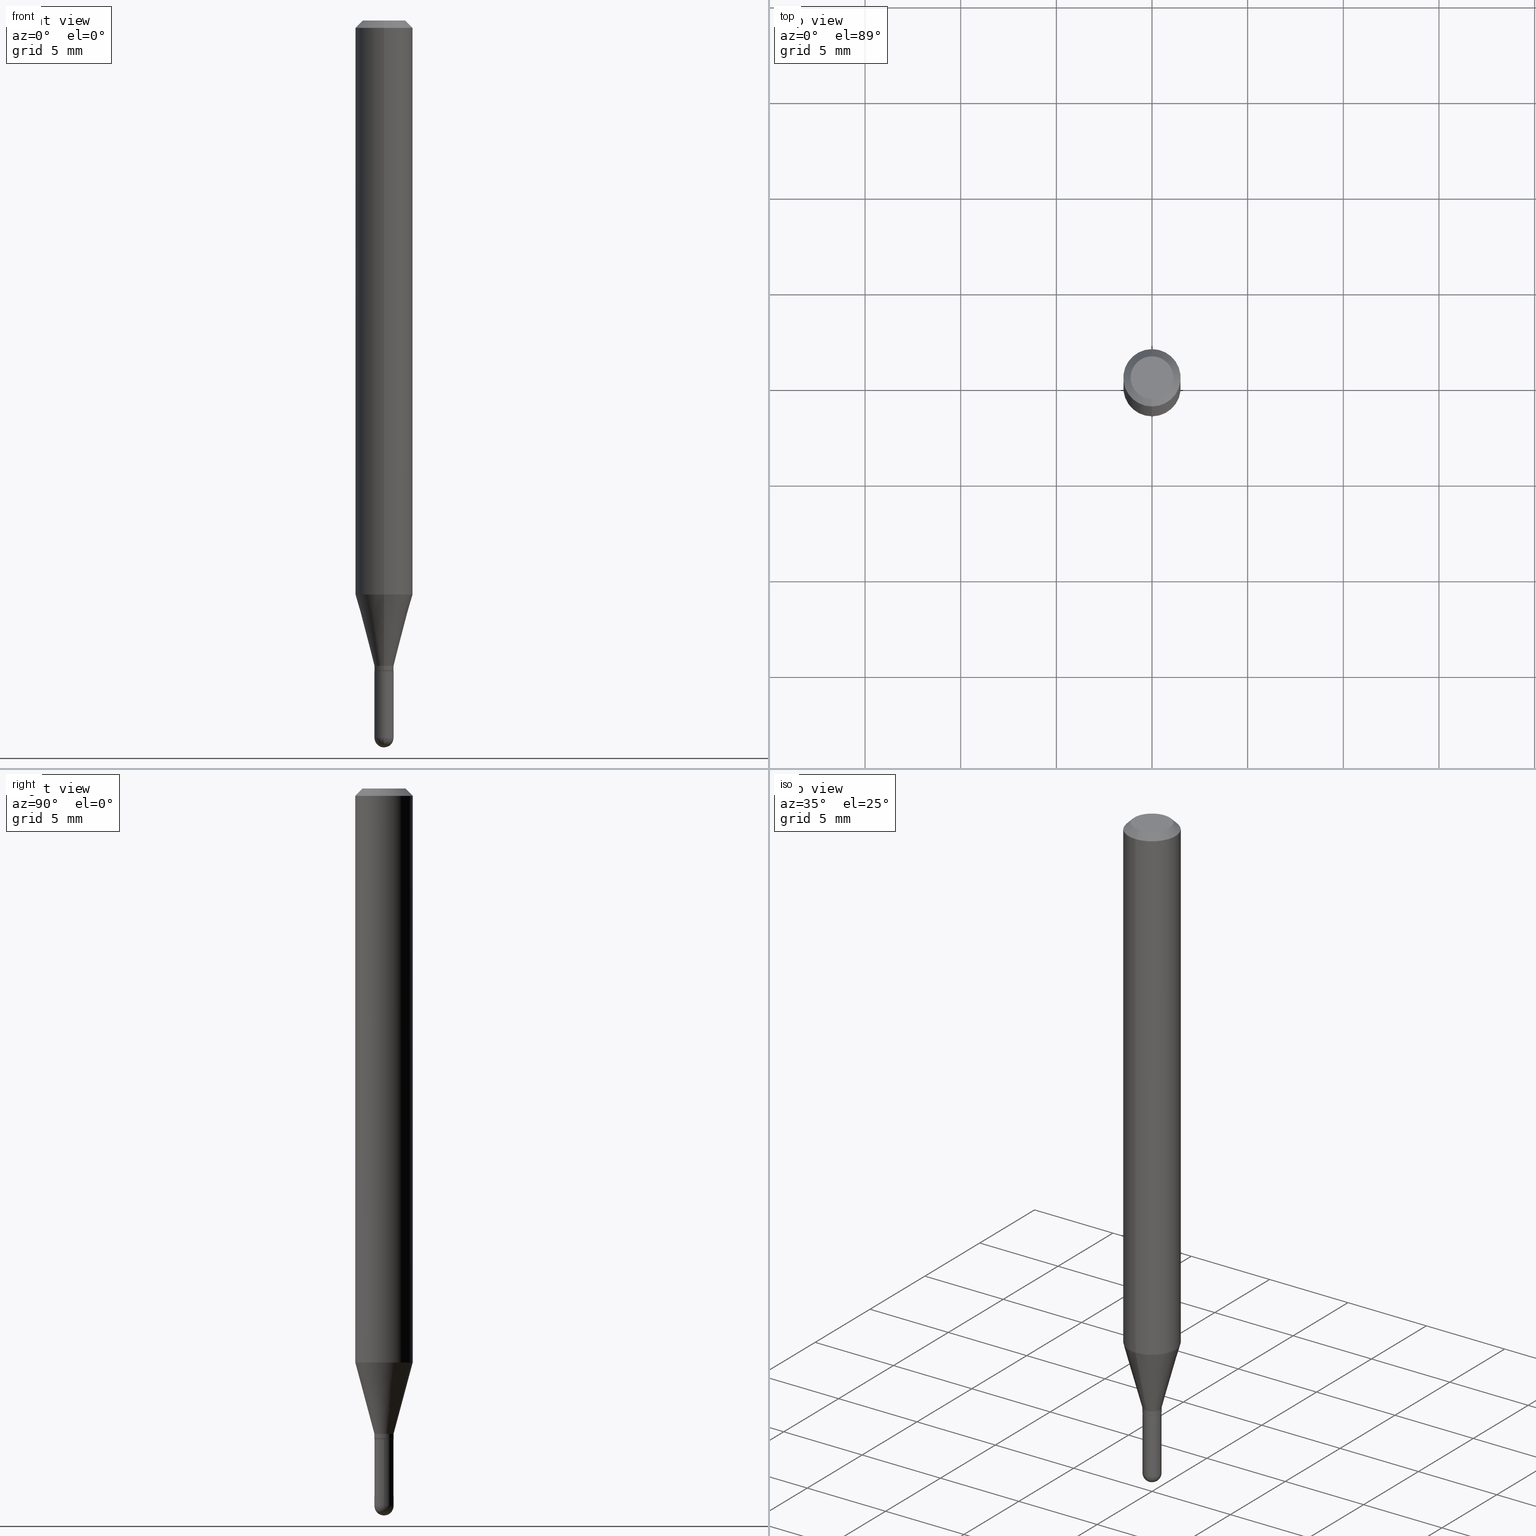
[diagram: canonical four-view strip — front | top / right | iso, engineering-drawing reading convention]
A machine part, canonical four-view strip (front | top / right | iso — engineering-drawing reading convention). The complete STEP part file that produces these views, byte-faithful:
ISO-10303-21;
HEADER;
FILE_DESCRIPTION (( 'STEP AP203' ),
    '1' );
FILE_NAME ('48735.STEP',
    '2024-03-08T13:19:25',
    ( '' ),
    ( '' ),
    'SwSTEP 2.0',
    'SolidWorks 2023',
    '' );
FILE_SCHEMA (( 'CONFIG_CONTROL_DESIGN' ));
ENDSEC;

DATA;
#1 = EDGE_CURVE ( 'NONE', #126, #434, #158, .T. ) ;
#2 = DIRECTION ( 'NONE',  ( -6.982962677686265922E-15, -1.000000000000000000, 3.489512315861569973E-15 ) ) ;
#3 = ADVANCED_FACE ( 'NONE', ( #500 ), #476, .T. ) ;
#4 = VERTEX_POINT ( 'NONE', #262 ) ;
#5 = AXIS2_PLACEMENT_3D ( 'NONE', #86, #83, #280 ) ;
#6 = DIRECTION ( 'NONE',  ( -2.445468806185136597E-29, 3.491481338843145583E-15, 1.000000000000000000 ) ) ;
#7 = EDGE_LOOP ( 'NONE', ( #347, #351, #41, #204, #54 ) ) ;
#8 = LINE ( 'NONE', #329, #235 ) ;
#9 = ORIENTED_EDGE ( 'NONE', *, *, #238, .T. ) ;
#10 = DIRECTION ( 'NONE',  ( 6.982962677686265133E-15, 1.000000000000000000, 0.000000000000000000 ) ) ;
#11 = ORIENTED_EDGE ( 'NONE', *, *, #285, .T. ) ;
#12 = CIRCLE ( 'NONE', #459, 0.05905000000000001914 ) ;
#13 = PRODUCT ( '48735', '48735', '', ( #387 ) ) ;
#14 = AXIS2_PLACEMENT_3D ( 'NONE', #429, #333, #108 ) ;
#15 = LOCAL_TIME ( 8, 19, 25.00000000000000000, #291 ) ;
#16 = FACE_OUTER_BOUND ( 'NONE', #7, .T. ) ;
#17 = VERTEX_POINT ( 'NONE', #340 ) ;
#18 = CARTESIAN_POINT ( 'NONE',  ( 3.274121645404580744E-29, -4.669316429854365790E-15, -1.338099999999999845 ) ) ;
#19 = VERTEX_POINT ( 'NONE', #24 ) ;
#20 = PERSON_AND_ORGANIZATION ( #248, #395 ) ;
#21 = CC_DESIGN_APPROVAL ( #43, ( #355 ) ) ;
#22 = FACE_OUTER_BOUND ( 'NONE', #129, .T. ) ;
#23 = EDGE_CURVE ( 'NONE', #84, #432, #143, .T. ) ;
#24 = CARTESIAN_POINT ( 'NONE',  ( 0.01969999999999982529, -5.051824349172144243E-15, -1.476399999999999935 ) ) ;
#25 = EDGE_CURVE ( 'NONE', #316, #409, #75, .T. ) ;
#26 = EDGE_CURVE ( 'NONE', #330, #407, #508, .T. ) ;
#27 = ADVANCED_FACE ( 'NONE', ( #503 ), #223, .T. ) ;
#28 = DIRECTION ( 'NONE',  ( -6.982962677686265922E-15, -1.000000000000000000, 3.489512315861569973E-15 ) ) ;
#29 = AXIS2_PLACEMENT_3D ( 'NONE', #180, #304, #185 ) ;
#30 = CONICAL_SURFACE ( 'NONE', #461, 0.01969999999999975590, 0.2617993877991498519 ) ;
#31 = CYLINDRICAL_SURFACE ( 'NONE', #359, 0.05905000000000001914 ) ;
#32 = APPROVAL_DATE_TIME ( #413, #50 ) ;
#33 = DIRECTION ( 'NONE',  ( -6.982962677686265922E-15, -1.000000000000000000, 3.505890868245044514E-15 ) ) ;
#34 = CARTESIAN_POINT ( 'NONE',  ( -0.01969999999999982529, -4.774283065476988875E-15, -1.476399999999999935 ) ) ;
#35 = DIRECTION ( 'NONE',  ( -2.446843767584321492E-29, 3.489512315861569973E-15, 1.000000000000000000 ) ) ;
#36 = CALENDAR_DATE ( 2024, 8, 3 ) ;
#37 = FACE_OUTER_BOUND ( 'NONE', #375, .T. ) ;
#38 = CC_DESIGN_APPROVAL ( #284, ( #142 ) ) ;
#39 = DATE_TIME_ROLE ( 'classification_date' ) ;
#40 = CARTESIAN_POINT ( 'NONE',  ( -4.123439461173741313E-16, -0.05905000000000001914, 2.060557022516257628E-16 ) ) ;
#41 = ORIENTED_EDGE ( 'NONE', *, *, #1, .F. ) ;
#42 = LINE ( 'NONE', #40, #300 ) ;
#43 = APPROVAL ( #501, 'UNSPECIFIED' ) ;
#44 = PLANE ( 'NONE',  #178 ) ;
#45 = ORIENTED_EDGE ( 'NONE', *, *, #125, .F. ) ;
#46 = DATE_AND_TIME ( #473, #371 ) ;
#47 = VECTOR ( 'NONE', #511, 39.37007874015748143 ) ;
#48 = CARTESIAN_POINT ( 'NONE',  ( 1.382005621053707097E-16, 0.01919999999999515150, -1.338599999999999790 ) ) ;
#49 = ORIENTED_EDGE ( 'NONE', *, *, #494, .T. ) ;
#50 = APPROVAL ( #94, 'UNSPECIFIED' ) ;
#51 = CARTESIAN_POINT ( 'NONE',  ( 3.610490145451735091E-29, -5.154823048668019264E-15, -1.476399999999999935 ) ) ;
#52 = ORIENTED_EDGE ( 'NONE', *, *, #138, .F. ) ;
#53 = CYLINDRICAL_SURFACE ( 'NONE', #360, 0.01969999999999974896 ) ;
#54 = ORIENTED_EDGE ( 'NONE', *, *, #344, .T. ) ;
#55 = CONICAL_SURFACE ( 'NONE', #452, 0.01919999999999982485, 0.7853981633974718157 ) ;
#56 = CIRCLE ( 'NONE', #149, 0.05905000000000001914 ) ;
#57 = DIRECTION ( 'NONE',  ( -1.807323732225327378E-15, -0.2588190451025177974, 0.9659258262890690894 ) ) ;
#58 = ORIENTED_EDGE ( 'NONE', *, *, #138, .T. ) ;
#59 = DIRECTION ( 'NONE',  ( -2.446843767584321492E-29, 3.489512315861569973E-15, 1.000000000000000000 ) ) ;
#60 = SECURITY_CLASSIFICATION_LEVEL ( 'unclassified' ) ;
#61 = DIRECTION ( 'NONE',  ( -1.000000000000000000, 6.982962677686265922E-15, -4.876176775795935793E-29 ) ) ;
#62 = UNCERTAINTY_MEASURE_WITH_UNIT (LENGTH_MEASURE( 1.000000000000000082E-05 ), #464, 'distance_accuracy_value', 'NONE');
#63 = APPROVAL_PERSON_ORGANIZATION ( #130, #50, #265 ) ;
#64 = DIRECTION ( 'NONE',  ( 2.438088387897960049E-29, -3.491481338843145188E-15, -1.000000000000000000 ) ) ;
#65 = CARTESIAN_POINT ( 'NONE',  ( -1.340728834115423109E-16, -0.01920000000000449472, -1.338599999999999790 ) ) ;
#66 = CARTESIAN_POINT ( 'NONE',  ( 4.195754854663678920E-16, 0.05904999999999587662, -1.181243800722164172 ) ) ;
#67 = PERSON_AND_ORGANIZATION_ROLE ( 'creator' ) ;
#68 = CIRCLE ( 'NONE', #76, 0.01969999999999974549 ) ;
#69 = CARTESIAN_POINT ( 'NONE',  ( 3.670265651376586057E-31, -5.234268473792502525E-17, -0.01500000000000042445 ) ) ;
#70 = DESIGN_CONTEXT ( 'detailed design', #268, 'design' ) ;
#71 = FACE_OUTER_BOUND ( 'NONE', #156, .T. ) ;
#72 = PLANE ( 'NONE',  #141 ) ;
#73 = ORIENTED_EDGE ( 'NONE', *, *, #148, .F. ) ;
#74 = CARTESIAN_POINT ( 'NONE',  ( -4.051124067684086217E-16, -0.05905000000000006771, -0.01500000000000021802 ) ) ;
#75 = CIRCLE ( 'NONE', #327, 0.01969999999999975590 ) ;
#76 = AXIS2_PLACEMENT_3D ( 'NONE', #348, #228, #392 ) ;
#77 = ORIENTED_EDGE ( 'NONE', *, *, #457, .F. ) ;
#78 = VECTOR ( 'NONE', #468, 39.37007874015748143 ) ;
#79 = LINE ( 'NONE', #346, #78 ) ;
#80 = EDGE_LOOP ( 'NONE', ( #187, #120, #255, #362 ) ) ;
#81 = DIRECTION ( 'NONE',  ( -6.982962677686265922E-15, -1.000000000000000000, 0.000000000000000000 ) ) ;
#82 = ORIENTED_EDGE ( 'NONE', *, *, #184, .T. ) ;
#83 = DIRECTION ( 'NONE',  ( -2.446843767584321492E-29, 3.489512315861569973E-15, 1.000000000000000000 ) ) ;
#84 = VERTEX_POINT ( 'NONE', #66 ) ;
#85 = VECTOR ( 'NONE', #307, 39.37007874015748143 ) ;
#86 = CARTESIAN_POINT ( 'NONE',  ( 1.037957314455214522E-44, -1.480259949619056811E-30, -4.242025290727700899E-16 ) ) ;
#87 = ORIENTED_EDGE ( 'NONE', *, *, #184, .F. ) ;
#88 = FACE_OUTER_BOUND ( 'NONE', #80, .T. ) ;
#89 = ORIENTED_EDGE ( 'NONE', *, *, #465, .F. ) ;
#90 = DIRECTION ( 'NONE',  ( -2.446843767584321492E-29, 3.489512315861569973E-15, 1.000000000000000000 ) ) ;
#91 = EDGE_LOOP ( 'NONE', ( #52, #319, #447, #247 ) ) ;
#92 = AXIS2_PLACEMENT_3D ( 'NONE', #102, #64, #61 ) ;
#93 = AXIS2_PLACEMENT_3D ( 'NONE', #161, #487, #208 ) ;
#94 = APPROVAL_STATUS ( 'not_yet_approved' ) ;
#95 = ORIENTED_EDGE ( 'NONE', *, *, #465, .T. ) ;
#96 = APPROVAL_ROLE ( '' ) ;
#97 = DIRECTION ( 'NONE',  ( 1.000000000000000000, -6.982962677686242256E-15, 0.000000000000000000 ) ) ;
#98 = CARTESIAN_POINT ( 'NONE',  ( 3.670265651376586057E-31, -5.234268473792502525E-17, -0.01500000000000042445 ) ) ;
#99 = PRODUCT_RELATED_PRODUCT_CATEGORY ( 'detail', '', ( #13 ) ) ;
#100 = AXIS2_PLACEMENT_3D ( 'NONE', #113, #350, #157 ) ;
#101 = LINE ( 'NONE', #219, #334 ) ;
#102 = CARTESIAN_POINT ( 'NONE',  ( 1.375643647504509660E-16, 0.01969999999999515194, -1.338599999999999790 ) ) ;
#103 = CALENDAR_DATE ( 2024, 8, 3 ) ;
#104 = CARTESIAN_POINT ( 'NONE',  ( 3.273504543959423352E-29, -4.673696920175433159E-15, -1.338599999999999790 ) ) ;
#105 = DATE_AND_TIME ( #146, #133 ) ;
#106 = AXIS2_PLACEMENT_3D ( 'NONE', #244, #165, #406 ) ;
#107 = LINE ( 'NONE', #312, #301 ) ;
#108 = DIRECTION ( 'NONE',  ( 1.000000000000000000, 0.000000000000000000, 0.000000000000000000 ) ) ;
#109 = ADVANCED_FACE ( 'NONE', ( #22 ), #419, .T. ) ;
#110 = DIRECTION ( 'NONE',  ( 6.982962677686265922E-15, 1.000000000000000000, -3.505890868245044514E-15 ) ) ;
#111 = ORIENTED_EDGE ( 'NONE', *, *, #238, .F. ) ;
#112 = ADVANCED_FACE ( 'NONE', ( #462 ), #458, .F. ) ;
#113 = CARTESIAN_POINT ( 'NONE',  ( 3.670265651376586057E-31, -5.234268473792502525E-17, -0.01500000000000042445 ) ) ;
#114 = ADVANCED_FACE ( 'NONE', ( #338 ), #55, .T. ) ;
#115 = ADVANCED_FACE ( 'NONE', ( #299 ), #31, .T. ) ;
#116 = AXIS2_PLACEMENT_3D ( 'NONE', #104, #414, #466 ) ;
#117 = DIRECTION ( 'NONE',  ( -2.446843767584321492E-29, 3.489512315861569973E-15, 1.000000000000000000 ) ) ;
#118 = ORIENTED_EDGE ( 'NONE', *, *, #448, .T. ) ;
#119 = DIRECTION ( 'NONE',  ( -6.982962677686265133E-15, -1.000000000000000000, 0.000000000000000000 ) ) ;
#120 = ORIENTED_EDGE ( 'NONE', *, *, #125, .T. ) ;
#121 = CARTESIAN_POINT ( 'NONE',  ( -0.01969999999999982529, -4.774283065476988875E-15, -1.338599999999999790 ) ) ;
#122 = VERTEX_POINT ( 'NONE', #145 ) ;
#123 = CIRCLE ( 'NONE', #226, 0.01970000000000003693 ) ;
#124 = CARTESIAN_POINT ( 'NONE',  ( 3.610490145451735091E-29, -5.154823048668019264E-15, -1.476399999999999935 ) ) ;
#125 = EDGE_CURVE ( 'NONE', #409, #84, #101, .T. ) ;
#126 = VERTEX_POINT ( 'NONE', #217 ) ;
#127 = DIRECTION ( 'NONE',  ( -2.445468806185136597E-29, 3.491481338843145583E-15, 1.000000000000000000 ) ) ;
#128 = EDGE_CURVE ( 'NONE', #509, #154, #402, .T. ) ;
#129 = EDGE_LOOP ( 'NONE', ( #490, #82, #479, #412 ) ) ;
#130 = PERSON_AND_ORGANIZATION ( #248, #395 ) ;
#131 = VERTEX_POINT ( 'NONE', #495 ) ;
#132 = CIRCLE ( 'NONE', #5, 0.04405000000000000582 ) ;
#133 = LOCAL_TIME ( 8, 19, 25.00000000000000000, #504 ) ;
#134 = PERSON_AND_ORGANIZATION ( #248, #395 ) ;
#135 = CARTESIAN_POINT ( 'NONE',  ( 1.364242052659707289E-16, 0.01919999999999515150, -1.338599999999999790 ) ) ;
#136 = DIRECTION ( 'NONE',  ( -6.982962677686265922E-15, -1.000000000000000000, 3.489512315861569973E-15 ) ) ;
#137 = CC_DESIGN_PERSON_AND_ORGANIZATION_ASSIGNMENT ( #376, #67, ( #355 ) ) ;
#138 = EDGE_CURVE ( 'NONE', #407, #17, #296, .T. ) ;
#139 = CARTESIAN_POINT ( 'NONE',  ( 3.275345067288372105E-29, -4.671061186012295897E-15, -1.338599999999999790 ) ) ;
#140 = CLOSED_SHELL ( 'NONE', ( #415, #114, #315, #115, #323, #207, #109, #3, #322, #498, #378, #162 ) ) ;
#141 = AXIS2_PLACEMENT_3D ( 'NONE', #396, #512, #155 ) ;
#142 = SECURITY_CLASSIFICATION ( '', '', #60 ) ;
#143 = LINE ( 'NONE', #386, #170 ) ;
#144 = DATE_AND_TIME ( #36, #183 ) ;
#145 = CARTESIAN_POINT ( 'NONE',  ( 1.375643647504544420E-16, 0.01969999999999468704, -1.476399999999999935 ) ) ;
#146 = CALENDAR_DATE ( 2024, 8, 3 ) ;
#147 = DIRECTION ( 'NONE',  ( -1.000000000000000000, 7.105427357601001070E-15, -4.926315508542082329E-29 ) ) ;
#148 = EDGE_CURVE ( 'NONE', #330, #372, #422, .T. ) ;
#149 = AXIS2_PLACEMENT_3D ( 'NONE', #439, #326, #489 ) ;
#150 = CARTESIAN_POINT ( 'NONE',  ( 0.000000000000000000, 0.000000000000000000, 0.000000000000000000 ) ) ;
#151 = EDGE_LOOP ( 'NONE', ( #209, #49, #237, #89 ) ) ;
#152 = EDGE_CURVE ( 'NONE', #434, #126, #484, .T. ) ;
#153 = CARTESIAN_POINT ( 'NONE',  ( 1.037957314455214522E-44, -1.480259949619056811E-30, -4.242025290727700899E-16 ) ) ;
#154 = VERTEX_POINT ( 'NONE', #381 ) ;
#155 = DIRECTION ( 'NONE',  ( 6.982962677686265922E-15, 1.000000000000000000, -3.489512315861569973E-15 ) ) ;
#156 = EDGE_LOOP ( 'NONE', ( #506, #328, #321, #77 ) ) ;
#157 = DIRECTION ( 'NONE',  ( -6.982962677686265922E-15, -1.000000000000000000, 3.505890868245044514E-15 ) ) ;
#158 = CIRCLE ( 'NONE', #116, 0.01969999999999982529 ) ;
#159 = AXIS2_PLACEMENT_3D ( 'NONE', #286, #324, #241 ) ;
#160 = APPROVAL_DATE_TIME ( #46, #284 ) ;
#161 = CARTESIAN_POINT ( 'NONE',  ( 3.249653207728737815E-29, -4.634421306695751021E-15, -1.328100000000000058 ) ) ;
#162 = ADVANCED_FACE ( 'NONE', ( #194 ), #239, .T. ) ;
#163 = EDGE_LOOP ( 'NONE', ( #270, #118 ) ) ;
#164 = COORDINATED_UNIVERSAL_TIME_OFFSET ( 5, 0, .BEHIND. ) ;
#165 = DIRECTION ( 'NONE',  ( -2.445468806185136597E-29, 3.491481338843145583E-15, 1.000000000000000000 ) ) ;
#166 = EDGE_LOOP ( 'NONE', ( #45, #95, #215, #87 ) ) ;
#167 = EDGE_CURVE ( 'NONE', #432, #4, #220, .T. ) ;
#168 = DIRECTION ( 'NONE',  ( -6.982962677686265922E-15, -1.000000000000000000, 3.489512315861569973E-15 ) ) ;
#169 = ORIENTED_EDGE ( 'NONE', *, *, #298, .T. ) ;
#170 = VECTOR ( 'NONE', #460, 39.37007874015748143 ) ;
#171 = LINE ( 'NONE', #201, #420 ) ;
#172 = VERTEX_POINT ( 'NONE', #232 ) ;
#173 = CARTESIAN_POINT ( 'NONE',  ( 3.249653207728737815E-29, -4.634421306695751021E-15, -1.328100000000000058 ) ) ;
#174 = ORIENTED_EDGE ( 'NONE', *, *, #258, .T. ) ;
#175 = PERSON_AND_ORGANIZATION ( #248, #395 ) ;
#176 = DIRECTION ( 'NONE',  ( -6.982962677686265133E-15, -1.000000000000000000, 0.000000000000000000 ) ) ;
#177 = AXIS2_PLACEMENT_3D ( 'NONE', #339, #497, #28 ) ;
#178 = AXIS2_PLACEMENT_3D ( 'NONE', #470, #267, #426 ) ;
#179 = CARTESIAN_POINT ( 'NONE',  ( 3.275345067288372105E-29, -4.671061186012295897E-15, -1.338599999999999790 ) ) ;
#180 = CARTESIAN_POINT ( 'NONE',  ( 3.484233394517290141E-29, -5.335629902094134914E-15, -1.476399999999999935 ) ) ;
#181 = CARTESIAN_POINT ( 'NONE',  ( 3.249653207728737815E-29, -4.634421306695751021E-15, -1.328100000000000058 ) ) ;
#182 = EDGE_CURVE ( 'NONE', #407, #330, #394, .T. ) ;
#183 = LOCAL_TIME ( 8, 19, 25.00000000000000000, #379 ) ;
#184 = EDGE_CURVE ( 'NONE', #84, #283, #12, .T. ) ;
#185 = DIRECTION ( 'NONE',  ( 6.982962677686265922E-15, 1.000000000000000000, 0.000000000000000000 ) ) ;
#186 = DIRECTION ( 'NONE',  ( -6.982962677686265133E-15, -1.000000000000000000, 3.489512315861569973E-15 ) ) ;
#187 = ORIENTED_EDGE ( 'NONE', *, *, #25, .T. ) ;
#188 = EDGE_CURVE ( 'NONE', #283, #4, #42, .T. ) ;
#189 =( NAMED_UNIT ( * ) SI_UNIT ( $, .STERADIAN. ) SOLID_ANGLE_UNIT ( ) );
#190 = SPHERICAL_SURFACE ( 'NONE', #282, 0.01970000000000003693 ) ;
#191 = LENGTH_MEASURE_WITH_UNIT ( LENGTH_MEASURE( 0.02539999999999999897 ), #389 );
#192 = AXIS2_PLACEMENT_3D ( 'NONE', #388, #199, #264 ) ;
#193 = AXIS2_PLACEMENT_3D ( 'NONE', #173, #90, #249 ) ;
#194 = FACE_OUTER_BOUND ( 'NONE', #151, .T. ) ;
#195 = ORIENTED_EDGE ( 'NONE', *, *, #152, .T. ) ;
#196 = CARTESIAN_POINT ( 'NONE',  ( 3.484233394517290141E-29, -5.335629902094134914E-15, -1.476399999999999935 ) ) ;
#197 = ORIENTED_EDGE ( 'NONE', *, *, #152, .F. ) ;
#198 = PERSON_AND_ORGANIZATION ( #248, #395 ) ;
#199 = DIRECTION ( 'NONE',  ( -2.446843767584321492E-29, 3.489512315861569973E-15, 1.000000000000000000 ) ) ;
#200 = ORIENTED_EDGE ( 'NONE', *, *, #289, .T. ) ;
#201 = CARTESIAN_POINT ( 'NONE',  ( -0.01969999999999982529, 1.399769189447384952E-16, -9.690302127802078423E-31 ) ) ;
#202 = CLOSED_SHELL ( 'NONE', ( #416, #27, #112, #230, #352 ) ) ;
#203 = AXIS2_PLACEMENT_3D ( 'NONE', #51, #374, #437 ) ;
#204 = ORIENTED_EDGE ( 'NONE', *, *, #430, .F. ) ;
#205 = DIRECTION ( 'NONE',  ( -2.445468806185136877E-29, 3.491481338843145188E-15, 1.000000000000000000 ) ) ;
#206 = ORIENTED_EDGE ( 'NONE', *, *, #448, .F. ) ;
#207 = ADVANCED_FACE ( 'NONE', ( #505 ), #30, .T. ) ;
#208 = DIRECTION ( 'NONE',  ( -6.982962677686264344E-15, -1.000000000000000000, 0.000000000000000000 ) ) ;
#209 = ORIENTED_EDGE ( 'NONE', *, *, #298, .F. ) ;
#210 = EDGE_CURVE ( 'NONE', #243, #4, #266, .T. ) ;
#211 = FACE_OUTER_BOUND ( 'NONE', #393, .T. ) ;
#212 = ORIENTED_EDGE ( 'NONE', *, *, #337, .F. ) ;
#213 = CIRCLE ( 'NONE', #403, 0.01969999999999982529 ) ;
#214 = CARTESIAN_POINT ( 'NONE',  ( 4.195754854663682864E-16, 0.05904999999999996363, -0.01500000000000063262 ) ) ;
#215 = ORIENTED_EDGE ( 'NONE', *, *, #486, .T. ) ;
#216 = DATE_AND_TIME ( #103, #242 ) ;
#217 = CARTESIAN_POINT ( 'NONE',  ( 0.01969999999999982529, -4.811261284925851584E-15, -1.338599999999999790 ) ) ;
#218 = PERSON_AND_ORGANIZATION ( #248, #395 ) ;
#219 = CARTESIAN_POINT ( 'NONE',  ( 1.399769189447704441E-16, 0.01969999999999511725, -1.328100000000000058 ) ) ;
#220 = CIRCLE ( 'NONE', #100, 0.05905000000000001914 ) ;
#221 = APPROVAL_PERSON_ORGANIZATION ( #175, #43, #96 ) ;
#222 = DIRECTION ( 'NONE',  ( -2.446843767584321492E-29, 3.489512315861569973E-15, 1.000000000000000000 ) ) ;
#223 = SPHERICAL_SURFACE ( 'NONE', #29, 0.01970000000000003693 ) ;
#224 = DIRECTION ( 'NONE',  ( -2.446843767584321492E-29, 3.489512315861569973E-15, 1.000000000000000000 ) ) ;
#225 = CALENDAR_DATE ( 2024, 8, 3 ) ;
#226 = AXIS2_PLACEMENT_3D ( 'NONE', #446, #369, #10 ) ;
#227 = APPROVAL_PERSON_ORGANIZATION ( #198, #284, #234 ) ;
#228 = DIRECTION ( 'NONE',  ( -2.446843767584321492E-29, 3.489512315861569973E-15, 1.000000000000000000 ) ) ;
#229 = CARTESIAN_POINT ( 'NONE',  ( 3.484233394517290141E-29, -5.335629902094134914E-15, -1.476399999999999935 ) ) ;
#230 = ADVANCED_FACE ( 'NONE', ( #71 ), #190, .T. ) ;
#231 = PERSON_AND_ORGANIZATION_ROLE ( 'design_owner' ) ;
#232 = CARTESIAN_POINT ( 'NONE',  ( 3.533251468793978483E-29, -5.403205807372184080E-15, -1.496099999999999985 ) ) ;
#233 = EDGE_LOOP ( 'NONE', ( #481, #475, #488, #445 ) ) ;
#234 = APPROVAL_ROLE ( '' ) ;
#235 = VECTOR ( 'NONE', #401, 39.37007874015748143 ) ;
#236 = LINE ( 'NONE', #507, #85 ) ;
#237 = ORIENTED_EDGE ( 'NONE', *, *, #308, .T. ) ;
#238 = EDGE_CURVE ( 'NONE', #372, #17, #68, .T. ) ;
#239 = CYLINDRICAL_SURFACE ( 'NONE', #418, 0.01969999999999974896 ) ;
#240 = FACE_OUTER_BOUND ( 'NONE', #405, .T. ) ;
#241 = DIRECTION ( 'NONE',  ( 1.000000000000000000, -6.982962677686266711E-15, 4.876176775795936353E-29 ) ) ;
#242 = LOCAL_TIME ( 8, 19, 25.00000000000000000, #391 ) ;
#243 = VERTEX_POINT ( 'NONE', #478 ) ;
#244 = CARTESIAN_POINT ( 'NONE',  ( 0.000000000000000000, 0.000000000000000000, 0.000000000000000000 ) ) ;
#245 = ORIENTED_EDGE ( 'NONE', *, *, #167, .T. ) ;
#246 = CARTESIAN_POINT ( 'NONE',  ( -1.375643647503853673E-16, -0.01970000000000448476, -1.338099999999999845 ) ) ;
#247 = ORIENTED_EDGE ( 'NONE', *, *, #494, .F. ) ;
#248 = PERSON ( 'UNSPECIFIED', 'UNSPECIFIED', 'UNSPECIFIED', ('UNSPECIFIED'), ('UNSPECIFIED'), ('UNSPECIFIED') ) ;
#249 = DIRECTION ( 'NONE',  ( -6.982962677686264344E-15, -1.000000000000000000, 0.000000000000000000 ) ) ;
#250 = AXIS2_PLACEMENT_3D ( 'NONE', #98, #496, #377 ) ;
#251 = EDGE_LOOP ( 'NONE', ( #272, #174, #440, #279 ) ) ;
#252 = PRODUCT_DEFINITION_FORMATION_WITH_SPECIFIED_SOURCE ( 'ANY', '', #13, .NOT_KNOWN. ) ;
#253 = CC_DESIGN_SECURITY_CLASSIFICATION ( #142, ( #252 ) ) ;
#254 = PERSON_AND_ORGANIZATION ( #248, #395 ) ;
#255 = ORIENTED_EDGE ( 'NONE', *, *, #444, .F. ) ;
#256 = CARTESIAN_POINT ( 'NONE',  ( 0.000000000000000000, 0.000000000000000000, 0.000000000000000000 ) ) ;
#257 = DIRECTION ( 'NONE',  ( -6.982962677686264344E-15, -1.000000000000000000, 0.000000000000000000 ) ) ;
#258 = EDGE_CURVE ( 'NONE', #172, #154, #302, .T. ) ;
#259 = AXIS2_PLACEMENT_3D ( 'NONE', #408, #480, #119 ) ;
#260 = DIRECTION ( 'NONE',  ( 1.000000000000000000, -6.982962677686291165E-15, 0.000000000000000000 ) ) ;
#261 = CC_DESIGN_DATE_AND_TIME_ASSIGNMENT ( #105, #39, ( #142 ) ) ;
#262 = CARTESIAN_POINT ( 'NONE',  ( -4.123439461173737369E-16, -0.05905000000000006771, -0.01500000000000021802 ) ) ;
#263 = DATE_TIME_ROLE ( 'creation_date' ) ;
#264 = DIRECTION ( 'NONE',  ( -6.982962677686265133E-15, -1.000000000000000000, 0.000000000000000000 ) ) ;
#265 = APPROVAL_ROLE ( '' ) ;
#266 = LINE ( 'NONE', #74, #47 ) ;
#267 = DIRECTION ( 'NONE',  ( -2.446843767584321212E-29, 3.489512315861569973E-15, 1.000000000000000000 ) ) ;
#268 = APPLICATION_CONTEXT ( 'configuration controlled 3d designs of mechanical parts and assemblies' ) ;
#269 = CARTESIAN_POINT ( 'NONE',  ( -1.375643647503852441E-16, -0.01970000000000439108, -1.328100000000000058 ) ) ;
#270 = ORIENTED_EDGE ( 'NONE', *, *, #297, .T. ) ;
#271 = CARTESIAN_POINT ( 'NONE',  ( -4.123439461173452886E-16, -0.05905000000000415472, -1.181243800722163728 ) ) ;
#272 = ORIENTED_EDGE ( 'NONE', *, *, #399, .F. ) ;
#273 = CIRCLE ( 'NONE', #411, 0.04405000000000000582 ) ;
#274 = DIRECTION ( 'NONE',  ( -2.446843767584321492E-29, 3.489512315861569973E-15, 1.000000000000000000 ) ) ;
#275 = EDGE_LOOP ( 'NONE', ( #212, #287, #354, #367, #197 ) ) ;
#276 = CARTESIAN_POINT ( 'NONE',  ( 3.610490145451735091E-29, -5.154823048668019264E-15, -1.476399999999999935 ) ) ;
#277 = ORIENTED_EDGE ( 'NONE', *, *, #210, .T. ) ;
#278 = CYLINDRICAL_SURFACE ( 'NONE', #159, 0.01969999999999982529 ) ;
#279 = ORIENTED_EDGE ( 'NONE', *, *, #463, .F. ) ;
#280 = DIRECTION ( 'NONE',  ( -6.982962677686265133E-15, -1.000000000000000000, 3.489512315861569973E-15 ) ) ;
#281 = AXIS2_PLACEMENT_3D ( 'NONE', #335, #306, #260 ) ;
#282 = AXIS2_PLACEMENT_3D ( 'NONE', #196, #436, #313 ) ;
#283 = VERTEX_POINT ( 'NONE', #271 ) ;
#284 = APPROVAL ( #438, 'UNSPECIFIED' ) ;
#285 = EDGE_CURVE ( 'NONE', #4, #432, #510, .T. ) ;
#286 = CARTESIAN_POINT ( 'NONE',  ( 0.000000000000000000, 0.000000000000000000, 0.000000000000000000 ) ) ;
#287 = ORIENTED_EDGE ( 'NONE', *, *, #128, .T. ) ;
#288 = DIRECTION ( 'NONE',  ( 1.000000000000000000, -6.982962677686291165E-15, 0.000000000000000000 ) ) ;
#289 = EDGE_CURVE ( 'NONE', #131, #432, #236, .T. ) ;
#290 = EDGE_LOOP ( 'NONE', ( #428, #195 ) ) ;
#291 = COORDINATED_UNIVERSAL_TIME_OFFSET ( 5, 0, .BEHIND. ) ;
#292 = MANIFOLD_SOLID_BREP ( 'Body-Move/Copy2[1]', #202 ) ;
#293 = ORIENTED_EDGE ( 'NONE', *, *, #297, .F. ) ;
#294 = AXIS2_PLACEMENT_3D ( 'NONE', #124, #127, #443 ) ;
#295 = DIRECTION ( 'NONE',  ( -4.937700262164664794E-15, -0.7071067811865617836, 0.7071067811865333619 ) ) ;
#296 = LINE ( 'NONE', #135, #310 ) ;
#297 = EDGE_CURVE ( 'NONE', #131, #243, #273, .T. ) ;
#298 = EDGE_CURVE ( 'NONE', #17, #409, #79, .T. ) ;
#299 = FACE_OUTER_BOUND ( 'NONE', #233, .T. ) ;
#300 = VECTOR ( 'NONE', #357, 39.37007874015748143 ) ;
#301 = VECTOR ( 'NONE', #427, 39.37007874015748143 ) ;
#302 = CIRCLE ( 'NONE', #317, 0.01970000000000003693 ) ;
#303 = CC_DESIGN_PERSON_AND_ORGANIZATION_ASSIGNMENT ( #134, #467, ( #252 ) ) ;
#304 = DIRECTION ( 'NONE',  ( -1.000000000000000000, 6.982962677686265922E-15, -4.883557194083112901E-29 ) ) ;
#305 =( NAMED_UNIT ( * ) PLANE_ANGLE_UNIT ( ) SI_UNIT ( $, .RADIAN. ) );
#306 = DIRECTION ( 'NONE',  ( -2.445468806185136597E-29, 3.491481338843145583E-15, 1.000000000000000000 ) ) ;
#307 = DIRECTION ( 'NONE',  ( 4.937700262164548831E-15, 0.7071067811865452413, -0.7071067811865497932 ) ) ;
#308 = EDGE_CURVE ( 'NONE', #372, #316, #107, .T. ) ;
#309 = APPLICATION_PROTOCOL_DEFINITION ( 'international standard', 'config_control_design', 1994, #363 ) ;
#310 = VECTOR ( 'NONE', #384, 39.37007874015748143 ) ;
#311 = CIRCLE ( 'NONE', #294, 0.01969999999999982529 ) ;
#312 = CARTESIAN_POINT ( 'NONE',  ( -1.375643647504176860E-16, -0.01969999999999974896, 6.874339262247205018E-17 ) ) ;
#313 = DIRECTION ( 'NONE',  ( 6.982962677686265922E-15, 1.000000000000000000, 0.000000000000000000 ) ) ;
#314 = CARTESIAN_POINT ( 'NONE',  ( 3.249653207728737815E-29, -4.634421306695751021E-15, -1.328100000000000058 ) ) ;
#315 = ADVANCED_FACE ( 'NONE', ( #37 ), #382, .T. ) ;
#316 = VERTEX_POINT ( 'NONE', #269 ) ;
#317 = AXIS2_PLACEMENT_3D ( 'NONE', #229, #147, #424 ) ;
#318 = DIRECTION ( 'NONE',  ( -6.982962677686264344E-15, -1.000000000000000000, 0.000000000000000000 ) ) ;
#319 = ORIENTED_EDGE ( 'NONE', *, *, #182, .T. ) ;
#320 = FACE_OUTER_BOUND ( 'NONE', #275, .T. ) ;
#321 = ORIENTED_EDGE ( 'NONE', *, *, #344, .F. ) ;
#322 = ADVANCED_FACE ( 'NONE', ( #431 ), #72, .F. ) ;
#323 = ADVANCED_FACE ( 'NONE', ( #88 ), #435, .T. ) ;
#324 = DIRECTION ( 'NONE',  ( -2.445468806185136597E-29, 3.491481338843145583E-15, 1.000000000000000000 ) ) ;
#325 = ORIENTED_EDGE ( 'NONE', *, *, #26, .F. ) ;
#326 = DIRECTION ( 'NONE',  ( -2.446843767584321492E-29, 3.489512315861569973E-15, 1.000000000000000000 ) ) ;
#327 = AXIS2_PLACEMENT_3D ( 'NONE', #181, #59, #257 ) ;
#328 = ORIENTED_EDGE ( 'NONE', *, *, #399, .T. ) ;
#329 = CARTESIAN_POINT ( 'NONE',  ( 0.01969999999999982529, -1.375643647504182283E-16, 9.606068248317909140E-31 ) ) ;
#330 = VERTEX_POINT ( 'NONE', #404 ) ;
#331 = CARTESIAN_POINT ( 'NONE',  ( -1.375643647503852441E-16, -0.01970000000000439108, -1.328100000000000058 ) ) ;
#332 = ORIENTED_EDGE ( 'NONE', *, *, #26, .T. ) ;
#333 = DIRECTION ( 'NONE',  ( 0.000000000000000000, 0.000000000000000000, 1.000000000000000000 ) ) ;
#334 = VECTOR ( 'NONE', #343, 39.37007874015748854 ) ;
#335 = CARTESIAN_POINT ( 'NONE',  ( 3.610490145451735091E-29, -5.154823048668019264E-15, -1.476399999999999935 ) ) ;
#336 = CONICAL_SURFACE ( 'NONE', #259, 0.01919999999999982485, 0.7853981633974718157 ) ;
#337 = EDGE_CURVE ( 'NONE', #509, #434, #171, .T. ) ;
#338 = FACE_OUTER_BOUND ( 'NONE', #358, .T. ) ;
#339 = CARTESIAN_POINT ( 'NONE',  ( 0.000000000000000000, 0.000000000000000000, 0.000000000000000000 ) ) ;
#340 = CARTESIAN_POINT ( 'NONE',  ( 1.399769189447701976E-16, 0.01969999999999500623, -1.338099999999999845 ) ) ;
#341 = CIRCLE ( 'NONE', #193, 0.01969999999999975590 ) ;
#342 = APPROVAL_DATE_TIME ( #216, #43 ) ;
#343 = DIRECTION ( 'NONE',  ( 1.839019923739597160E-15, 0.2588190451025245142, 0.9659258262890670910 ) ) ;
#344 = EDGE_CURVE ( 'NONE', #19, #122, #213, .T. ) ;
#345 = PERSON_AND_ORGANIZATION_ROLE ( 'classification_officer' ) ;
#346 = CARTESIAN_POINT ( 'NONE',  ( 1.399769189447379282E-16, 0.01969999999999974896, -6.874339262247205018E-17 ) ) ;
#347 = ORIENTED_EDGE ( 'NONE', *, *, #463, .T. ) ;
#348 = CARTESIAN_POINT ( 'NONE',  ( 3.274121645404580744E-29, -4.669316429854365790E-15, -1.338099999999999845 ) ) ;
#349 = CIRCLE ( 'NONE', #477, 0.01969999999999974549 ) ;
#350 = DIRECTION ( 'NONE',  ( -2.446843767584321492E-29, 3.489512315861569973E-15, 1.000000000000000000 ) ) ;
#351 = ORIENTED_EDGE ( 'NONE', *, *, #337, .T. ) ;
#352 = ADVANCED_FACE ( 'NONE', ( #320 ), #278, .T. ) ;
#353 = DIRECTION ( 'NONE',  ( -2.446843767584321492E-29, 3.489512315861569973E-15, 1.000000000000000000 ) ) ;
#354 = ORIENTED_EDGE ( 'NONE', *, *, #457, .T. ) ;
#355 = PRODUCT_DEFINITION ( 'UNKNOWN', '', #252, #70 ) ;
#356 = SHAPE_DEFINITION_REPRESENTATION ( #491, #368 ) ;
#357 = DIRECTION ( 'NONE',  ( -2.446843767584321772E-29, 3.489512315861569973E-15, 1.000000000000000000 ) ) ;
#358 = EDGE_LOOP ( 'NONE', ( #332, #58, #111, #73 ) ) ;
#359 = AXIS2_PLACEMENT_3D ( 'NONE', #256, #222, #136 ) ;
#360 = AXIS2_PLACEMENT_3D ( 'NONE', #364, #361, #168 ) ;
#361 = DIRECTION ( 'NONE',  ( -2.446843767584321492E-29, 3.489512315861569973E-15, 1.000000000000000000 ) ) ;
#362 = ORIENTED_EDGE ( 'NONE', *, *, #486, .F. ) ;
#363 = APPLICATION_CONTEXT ( 'configuration controlled 3d designs of mechanical parts and assemblies' ) ;
#364 = CARTESIAN_POINT ( 'NONE',  ( 0.000000000000000000, 0.000000000000000000, 0.000000000000000000 ) ) ;
#365 = ORIENTED_EDGE ( 'NONE', *, *, #289, .F. ) ;
#366 = FACE_OUTER_BOUND ( 'NONE', #91, .T. ) ;
#367 = ORIENTED_EDGE ( 'NONE', *, *, #430, .T. ) ;
#368 = ADVANCED_BREP_SHAPE_REPRESENTATION ( '48735', ( #292, #469, #14 ), #442 ) ;
#369 = DIRECTION ( 'NONE',  ( 1.000000000000000000, -6.982962677686265922E-15, 4.883557194083112340E-29 ) ) ;
#370 = AXIS2_PLACEMENT_3D ( 'NONE', #69, #433, #33 ) ;
#371 = LOCAL_TIME ( 8, 19, 25.00000000000000000, #164 ) ;
#372 = VERTEX_POINT ( 'NONE', #246 ) ;
#373 = CC_DESIGN_APPROVAL ( #50, ( #252 ) ) ;
#374 = DIRECTION ( 'NONE',  ( -2.445468806185136597E-29, 3.491481338843145583E-15, 1.000000000000000000 ) ) ;
#375 = EDGE_LOOP ( 'NONE', ( #206, #277, #11, #365 ) ) ;
#376 = PERSON_AND_ORGANIZATION ( #248, #395 ) ;
#377 = DIRECTION ( 'NONE',  ( 6.982962677686265922E-15, 1.000000000000000000, -3.505890868245044514E-15 ) ) ;
#378 = ADVANCED_FACE ( 'NONE', ( #366 ), #336, .T. ) ;
#379 = COORDINATED_UNIVERSAL_TIME_OFFSET ( 5, 0, .BEHIND. ) ;
#380 = AXIS2_PLACEMENT_3D ( 'NONE', #385, #456, #97 ) ;
#381 = CARTESIAN_POINT ( 'NONE',  ( -1.399769189447037360E-16, -0.01970000000000517865, -1.476399999999999935 ) ) ;
#382 = CONICAL_SURFACE ( 'NONE', #485, 0.05905000000000001914, 0.7853981633974485010 ) ;
#383 = CC_DESIGN_PERSON_AND_ORGANIZATION_ASSIGNMENT ( #218, #345, ( #142 ) ) ;
#384 = DIRECTION ( 'NONE',  ( 5.024295867788180719E-15, 0.7071067811865666686, 0.7071067811865284769 ) ) ;
#385 = CARTESIAN_POINT ( 'NONE',  ( 3.273504543959423352E-29, -4.673696920175433159E-15, -1.338599999999999790 ) ) ;
#386 = CARTESIAN_POINT ( 'NONE',  ( 4.195754854663391971E-16, 0.05905000000000001914, -2.060557022516257628E-16 ) ) ;
#387 = MECHANICAL_CONTEXT ( 'NONE', #363, 'mechanical' ) ;
#388 = CARTESIAN_POINT ( 'NONE',  ( 3.275345067288372105E-29, -4.671061186012295897E-15, -1.338599999999999790 ) ) ;
#389 =( LENGTH_UNIT ( ) NAMED_UNIT ( * ) SI_UNIT ( $, .METRE. ) );
#390 = CARTESIAN_POINT ( 'NONE',  ( 3.670265651376586057E-31, -5.234268473792502525E-17, -0.01500000000000042445 ) ) ;
#391 = COORDINATED_UNIVERSAL_TIME_OFFSET ( 5, 0, .BEHIND. ) ;
#392 = DIRECTION ( 'NONE',  ( -6.982962677686265922E-15, -1.000000000000000000, 0.000000000000000000 ) ) ;
#393 = EDGE_LOOP ( 'NONE', ( #9, #169, #483, #492 ) ) ;
#394 = CIRCLE ( 'NONE', #192, 0.01919999999999982485 ) ;
#395 = ORGANIZATION ( 'UNSPECIFIED', 'UNSPECIFIED', '' ) ;
#396 = CARTESIAN_POINT ( 'NONE',  ( 3.075995059520800222E-16, 0.04405000000000000582, -3.658142820500872246E-16 ) ) ;
#397 = CC_DESIGN_PERSON_AND_ORGANIZATION_ASSIGNMENT ( #254, #231, ( #13 ) ) ;
#398 = ORIENTED_EDGE ( 'NONE', *, *, #210, .F. ) ;
#399 = EDGE_CURVE ( 'NONE', #172, #122, #123, .T. ) ;
#400 = DIRECTION ( 'NONE',  ( -6.982962677686265922E-15, -1.000000000000000000, 4.626330217890367758E-15 ) ) ;
#401 = DIRECTION ( 'NONE',  ( -2.445468806185136877E-29, 3.491481338843145188E-15, 1.000000000000000000 ) ) ;
#402 = CIRCLE ( 'NONE', #281, 0.01969999999999982529 ) ;
#403 = AXIS2_PLACEMENT_3D ( 'NONE', #276, #6, #288 ) ;
#404 = CARTESIAN_POINT ( 'NONE',  ( -1.340728834115423109E-16, -0.01920000000000449472, -1.338599999999999790 ) ) ;
#405 = EDGE_LOOP ( 'NONE', ( #325, #454 ) ) ;
#406 = DIRECTION ( 'NONE',  ( 1.000000000000000000, -6.982962677686266711E-15, 4.876176775795936353E-29 ) ) ;
#407 = VERTEX_POINT ( 'NONE', #48 ) ;
#408 = CARTESIAN_POINT ( 'NONE',  ( 3.275345067288372105E-29, -4.671061186012295897E-15, -1.338599999999999790 ) ) ;
#409 = VERTEX_POINT ( 'NONE', #482 ) ;
#410 = LINE ( 'NONE', #331, #493 ) ;
#411 = AXIS2_PLACEMENT_3D ( 'NONE', #153, #353, #186 ) ;
#412 = ORIENTED_EDGE ( 'NONE', *, *, #167, .F. ) ;
#413 = DATE_AND_TIME ( #225, #15 ) ;
#414 = DIRECTION ( 'NONE',  ( -2.445468806185136597E-29, 3.491481338843145583E-15, 1.000000000000000000 ) ) ;
#415 = ADVANCED_FACE ( 'NONE', ( #211 ), #53, .T. ) ;
#416 = ADVANCED_FACE ( 'NONE', ( #16 ), #450, .T. ) ;
#417 = DIRECTION ( 'NONE',  ( -6.982962677686265133E-15, -1.000000000000000000, 0.000000000000000000 ) ) ;
#418 = AXIS2_PLACEMENT_3D ( 'NONE', #150, #35, #2 ) ;
#419 = CYLINDRICAL_SURFACE ( 'NONE', #177, 0.05905000000000001914 ) ;
#420 = VECTOR ( 'NONE', #205, 39.37007874015748143 ) ;
#421 = DIMENSIONAL_EXPONENTS ( 1.000000000000000000, 0.000000000000000000, 0.000000000000000000, 0.000000000000000000, 0.000000000000000000, 0.000000000000000000, 0.000000000000000000 ) ;
#422 = LINE ( 'NONE', #65, #441 ) ;
#423 = DIRECTION ( 'NONE',  ( -2.446843767584321492E-29, 3.489512315861569973E-15, 1.000000000000000000 ) ) ;
#424 = DIRECTION ( 'NONE',  ( -7.105427357600999492E-15, -1.000000000000000000, 0.000000000000000000 ) ) ;
#425 = CIRCLE ( 'NONE', #203, 0.01969999999999982529 ) ;
#426 = DIRECTION ( 'NONE',  ( -6.982962677686265922E-15, -1.000000000000000000, 3.489512315861569973E-15 ) ) ;
#427 = DIRECTION ( 'NONE',  ( -2.446843767584321772E-29, 3.489512315861569973E-15, 1.000000000000000000 ) ) ;
#428 = ORIENTED_EDGE ( 'NONE', *, *, #1, .T. ) ;
#429 = CARTESIAN_POINT ( 'NONE',  ( 0.000000000000000000, 0.000000000000000000, 0.000000000000000000 ) ) ;
#430 = EDGE_CURVE ( 'NONE', #19, #126, #8, .T. ) ;
#431 = FACE_OUTER_BOUND ( 'NONE', #163, .T. ) ;
#432 = VERTEX_POINT ( 'NONE', #214 ) ;
#433 = DIRECTION ( 'NONE',  ( -2.446843767584321492E-29, 3.489512315861569973E-15, 1.000000000000000000 ) ) ;
#434 = VERTEX_POINT ( 'NONE', #121 ) ;
#435 = CONICAL_SURFACE ( 'NONE', #93, 0.01969999999999975590, 0.2617993877991498519 ) ;
#436 = DIRECTION ( 'NONE',  ( -1.000000000000000000, 6.982962677686265922E-15, -4.883557194083112901E-29 ) ) ;
#437 = DIRECTION ( 'NONE',  ( 1.000000000000000000, -6.982962677686291165E-15, 0.000000000000000000 ) ) ;
#438 = APPROVAL_STATUS ( 'not_yet_approved' ) ;
#439 = CARTESIAN_POINT ( 'NONE',  ( 2.890319031794642916E-29, -4.121964790655120932E-15, -1.181243800722163950 ) ) ;
#440 = ORIENTED_EDGE ( 'NONE', *, *, #128, .F. ) ;
#441 = VECTOR ( 'NONE', #295, 39.37007874015748143 ) ;
#442 =( GEOMETRIC_REPRESENTATION_CONTEXT ( 3 ) GLOBAL_UNCERTAINTY_ASSIGNED_CONTEXT ( ( #62 ) ) GLOBAL_UNIT_ASSIGNED_CONTEXT ( ( #464, #305, #189 ) ) REPRESENTATION_CONTEXT ( 'NONE', 'WORKASPACE' ) );
#443 = DIRECTION ( 'NONE',  ( 1.000000000000000000, -6.982962677686291165E-15, 0.000000000000000000 ) ) ;
#444 = EDGE_CURVE ( 'NONE', #283, #84, #56, .T. ) ;
#445 = ORIENTED_EDGE ( 'NONE', *, *, #188, .F. ) ;
#446 = CARTESIAN_POINT ( 'NONE',  ( 3.484233394517290141E-29, -5.335629902094134914E-15, -1.476399999999999935 ) ) ;
#447 = ORIENTED_EDGE ( 'NONE', *, *, #148, .T. ) ;
#448 = EDGE_CURVE ( 'NONE', #243, #131, #132, .T. ) ;
#449 = CC_DESIGN_DATE_AND_TIME_ASSIGNMENT ( #144, #263, ( #355 ) ) ;
#450 = CYLINDRICAL_SURFACE ( 'NONE', #106, 0.01969999999999982529 ) ;
#451 = EDGE_LOOP ( 'NONE', ( #398, #293, #200, #245 ) ) ;
#452 = AXIS2_PLACEMENT_3D ( 'NONE', #139, #224, #176 ) ;
#453 = APPLICATION_PROTOCOL_DEFINITION ( 'international standard', 'config_control_design', 1994, #268 ) ;
#454 = ORIENTED_EDGE ( 'NONE', *, *, #182, .F. ) ;
#455 = PERSON_AND_ORGANIZATION_ROLE ( 'design_supplier' ) ;
#456 = DIRECTION ( 'NONE',  ( -2.445468806185136597E-29, 3.491481338843145583E-15, 1.000000000000000000 ) ) ;
#457 = EDGE_CURVE ( 'NONE', #154, #19, #311, .T. ) ;
#458 = PLANE ( 'NONE',  #92 ) ;
#459 = AXIS2_PLACEMENT_3D ( 'NONE', #474, #274, #400 ) ;
#460 = DIRECTION ( 'NONE',  ( -2.446843767584321772E-29, 3.489512315861569973E-15, 1.000000000000000000 ) ) ;
#461 = AXIS2_PLACEMENT_3D ( 'NONE', #314, #472, #318 ) ;
#462 = FACE_OUTER_BOUND ( 'NONE', #290, .T. ) ;
#463 = EDGE_CURVE ( 'NONE', #122, #509, #425, .T. ) ;
#464 =( CONVERSION_BASED_UNIT ( 'INCH', #191 ) LENGTH_UNIT ( ) NAMED_UNIT ( #421 ) );
#465 = EDGE_CURVE ( 'NONE', #409, #316, #341, .T. ) ;
#466 = DIRECTION ( 'NONE',  ( 1.000000000000000000, -6.982962677686242256E-15, 0.000000000000000000 ) ) ;
#467 = PERSON_AND_ORGANIZATION_ROLE ( 'creator' ) ;
#468 = DIRECTION ( 'NONE',  ( -2.446843767584321772E-29, 3.489512315861569973E-15, 1.000000000000000000 ) ) ;
#469 = MANIFOLD_SOLID_BREP ( 'Body-Move/Copy2[2]', #140 ) ;
#470 = CARTESIAN_POINT ( 'NONE',  ( 3.275345067288372105E-29, -4.671061186012295897E-15, -1.338599999999999790 ) ) ;
#471 = DIRECTION ( 'NONE',  ( 2.446843767584321492E-29, -3.489512315861569973E-15, -1.000000000000000000 ) ) ;
#472 = DIRECTION ( 'NONE',  ( -2.446843767584321492E-29, 3.489512315861569973E-15, 1.000000000000000000 ) ) ;
#473 = CALENDAR_DATE ( 2024, 8, 3 ) ;
#474 = CARTESIAN_POINT ( 'NONE',  ( 2.890319031794642916E-29, -4.121964790655120932E-15, -1.181243800722163950 ) ) ;
#475 = ORIENTED_EDGE ( 'NONE', *, *, #23, .T. ) ;
#476 = CONICAL_SURFACE ( 'NONE', #250, 0.05905000000000001914, 0.7853981633974485010 ) ;
#477 = AXIS2_PLACEMENT_3D ( 'NONE', #18, #117, #81 ) ;
#478 = CARTESIAN_POINT ( 'NONE',  ( -3.536586717851222711E-16, -0.04405000000000000582, -2.704895115590679349E-16 ) ) ;
#479 = ORIENTED_EDGE ( 'NONE', *, *, #188, .T. ) ;
#480 = DIRECTION ( 'NONE',  ( -2.446843767584321492E-29, 3.489512315861569973E-15, 1.000000000000000000 ) ) ;
#481 = ORIENTED_EDGE ( 'NONE', *, *, #444, .T. ) ;
#482 = CARTESIAN_POINT ( 'NONE',  ( 2.797762022055693776E-16, 0.01969999999999511725, -1.328100000000000058 ) ) ;
#483 = ORIENTED_EDGE ( 'NONE', *, *, #25, .F. ) ;
#484 = CIRCLE ( 'NONE', #380, 0.01969999999999982529 ) ;
#485 = AXIS2_PLACEMENT_3D ( 'NONE', #390, #471, #110 ) ;
#486 = EDGE_CURVE ( 'NONE', #316, #283, #410, .T. ) ;
#487 = DIRECTION ( 'NONE',  ( -2.446843767584321492E-29, 3.489512315861569973E-15, 1.000000000000000000 ) ) ;
#488 = ORIENTED_EDGE ( 'NONE', *, *, #285, .F. ) ;
#489 = DIRECTION ( 'NONE',  ( -6.982962677686265922E-15, -1.000000000000000000, 4.626330217890367758E-15 ) ) ;
#490 = ORIENTED_EDGE ( 'NONE', *, *, #23, .F. ) ;
#491 = PRODUCT_DEFINITION_SHAPE ( 'NONE', 'NONE',  #355 ) ;
#492 = ORIENTED_EDGE ( 'NONE', *, *, #308, .F. ) ;
#493 = VECTOR ( 'NONE', #57, 39.37007874015748143 ) ;
#494 = EDGE_CURVE ( 'NONE', #17, #372, #349, .T. ) ;
#495 = CARTESIAN_POINT ( 'NONE',  ( 3.599717260347272986E-16, 0.04405000000000000582, -5.779155465864722942E-16 ) ) ;
#496 = DIRECTION ( 'NONE',  ( 2.446843767584321492E-29, -3.489512315861569973E-15, -1.000000000000000000 ) ) ;
#497 = DIRECTION ( 'NONE',  ( -2.446843767584321492E-29, 3.489512315861569973E-15, 1.000000000000000000 ) ) ;
#498 = ADVANCED_FACE ( 'NONE', ( #240 ), #44, .F. ) ;
#499 = AXIS2_PLACEMENT_3D ( 'NONE', #179, #423, #417 ) ;
#500 = FACE_OUTER_BOUND ( 'NONE', #451, .T. ) ;
#501 = APPROVAL_STATUS ( 'not_yet_approved' ) ;
#502 = CC_DESIGN_PERSON_AND_ORGANIZATION_ASSIGNMENT ( #20, #455, ( #252 ) ) ;
#503 = FACE_OUTER_BOUND ( 'NONE', #251, .T. ) ;
#504 = COORDINATED_UNIVERSAL_TIME_OFFSET ( 5, 0, .BEHIND. ) ;
#505 = FACE_OUTER_BOUND ( 'NONE', #166, .T. ) ;
#506 = ORIENTED_EDGE ( 'NONE', *, *, #258, .F. ) ;
#507 = CARTESIAN_POINT ( 'NONE',  ( 4.123439461173744764E-16, 0.05904999999999996363, -0.01500000000000063262 ) ) ;
#508 = CIRCLE ( 'NONE', #499, 0.01919999999999982485 ) ;
#509 = VERTEX_POINT ( 'NONE', #34 ) ;
#510 = CIRCLE ( 'NONE', #370, 0.05905000000000001914 ) ;
#511 = DIRECTION ( 'NONE',  ( -4.851104656540965064E-15, -0.7071067811865501263, -0.7071067811865449082 ) ) ;
#512 = DIRECTION ( 'NONE',  ( 2.446843767584321212E-29, -3.489512315861569973E-15, -1.000000000000000000 ) ) ;
ENDSEC;
END-ISO-10303-21;
